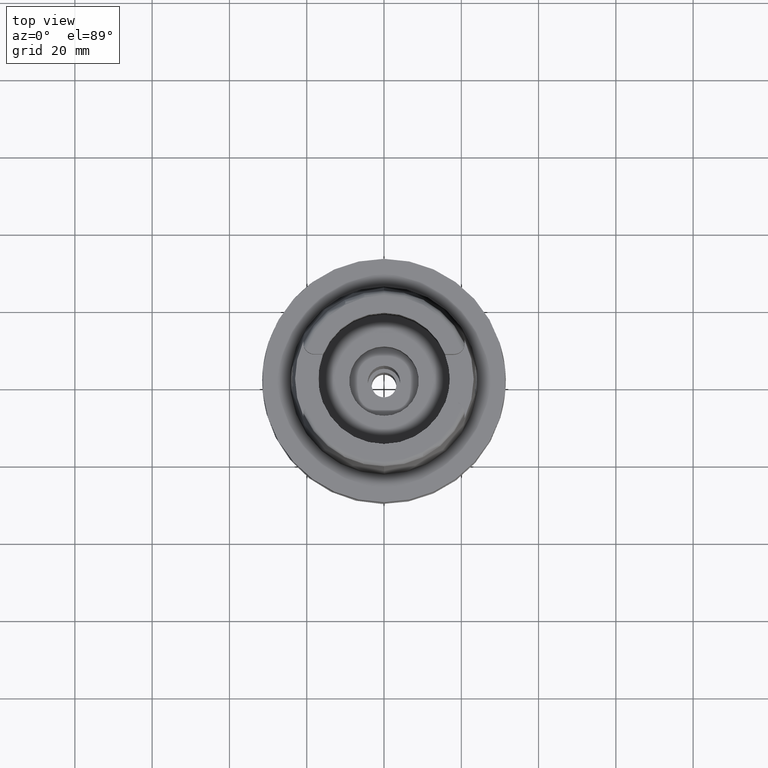
[diagram: clean part render]
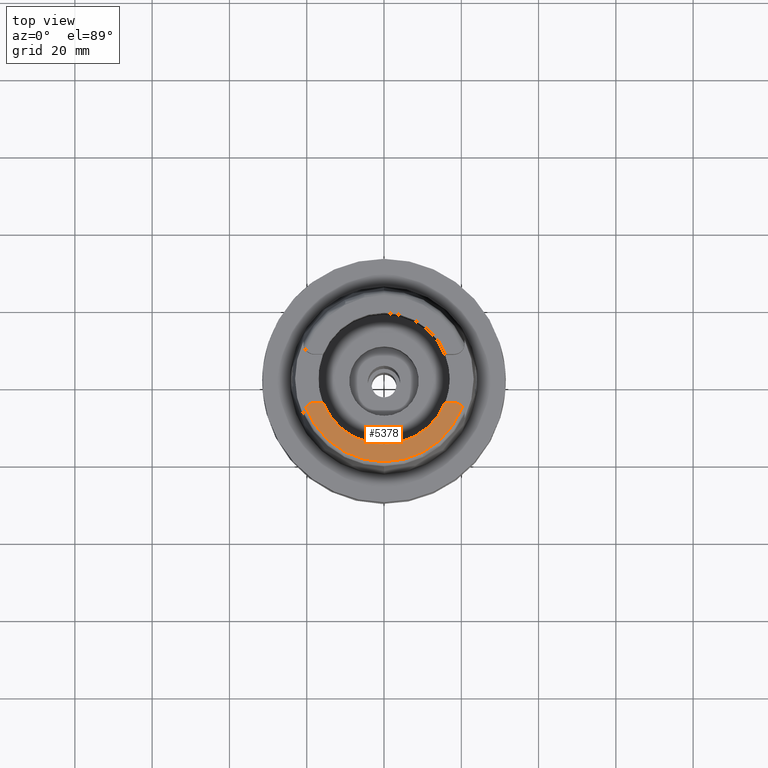
[diagram: same view with one face highlighted and labeled with its STEP entity id]
A machine part, top view. The second image highlights one B-rep face of the part: STEP entity #5378.
In plain terms, the highlighted planar face has unit normal (0, 0, 1).
Its self-contained STEP definition (entity closure, byte-faithful):
#73 = CARTESIAN_POINT ( 'NONE',  ( 20.28174256341000259, -7.352969181062000814, 32.00000000000000000 ) ) ;
#217 = VERTEX_POINT ( 'NONE', #536 ) ;
#224 = EDGE_CURVE ( 'NONE', #1503, #257, #843, .T. ) ;
#257 = VERTEX_POINT ( 'NONE', #3829 ) ;
#469 = CARTESIAN_POINT ( 'NONE',  ( -17.98999999999999844, -9.150000000000000355, 32.00000000000000000 ) ) ;
#536 = CARTESIAN_POINT ( 'NONE',  ( -17.98999999999999844, -6.270000000000000462, 32.00000000000000000 ) ) ;
#572 = CARTESIAN_POINT ( 'NONE',  ( 0.0000000000000000000, 0.0000000000000000000, 32.00000000000000000 ) ) ;
#673 = CARTESIAN_POINT ( 'NONE',  ( 15.80149043602999903, -6.270000000000000462, 32.00000000000000000 ) ) ;
#696 = FACE_OUTER_BOUND ( 'NONE', #3924, .T. ) ;
#740 = ORIENTED_EDGE ( 'NONE', *, *, #1173, .F. ) ;
#843 = CIRCLE ( 'NONE', #2156, 21.57348458609000375 ) ;
#847 = CIRCLE ( 'NONE', #3917, 17.00000000000000000 ) ;
#860 = ORIENTED_EDGE ( 'NONE', *, *, #1501, .T. ) ;
#928 = DIRECTION ( 'NONE',  ( 0.0000000000000000000, 0.0000000000000000000, 1.000000000000000000 ) ) ;
#941 = EDGE_CURVE ( 'NONE', #4662, #5358, #847, .T. ) ;
#964 = CARTESIAN_POINT ( 'NONE',  ( -15.80149043602999903, -6.270000000000000462, 32.00000000000000000 ) ) ;
#975 = LINE ( 'NONE', #3571, #3109 ) ;
#1173 = EDGE_CURVE ( 'NONE', #2425, #4662, #5243, .T. ) ;
#1473 = VERTEX_POINT ( 'NONE', #3854 ) ;
#1501 = EDGE_CURVE ( 'NONE', #1473, #5358, #2516, .T. ) ;
#1503 = VERTEX_POINT ( 'NONE', #73 ) ;
#1523 = AXIS2_PLACEMENT_3D ( 'NONE', #2354, #2820, #1553 ) ;
#1553 = DIRECTION ( 'NONE',  ( 0.0000000000000000000, 1.000000000000000000, 0.0000000000000000000 ) ) ;
#1877 = CIRCLE ( 'NONE', #1523, 2.800000000000000266 ) ;
#1914 = DIRECTION ( 'NONE',  ( 0.0000000000000000000, 0.0000000000000000000, 1.000000000000000000 ) ) ;
#1933 = DIRECTION ( 'NONE',  ( 0.0000000000000000000, 0.0000000000000000000, 1.000000000000000000 ) ) ;
#2103 = DIRECTION ( 'NONE',  ( -1.000000000000000000, -8.496094534321999950E-14, 0.0000000000000000000 ) ) ;
#2108 = CARTESIAN_POINT ( 'NONE',  ( 0.0000000000000000000, 0.0000000000000000000, 32.00000000000000000 ) ) ;
#2137 = CIRCLE ( 'NONE', #4249, 2.880000000000003446 ) ;
#2156 = AXIS2_PLACEMENT_3D ( 'NONE', #572, #3900, #3469 ) ;
#2245 = ORIENTED_EDGE ( 'NONE', *, *, #224, .F. ) ;
#2354 = CARTESIAN_POINT ( 'NONE',  ( 18.07000000000000028, -9.070000000000000284, 32.00000000000000000 ) ) ;
#2425 = VERTEX_POINT ( 'NONE', #964 ) ;
#2516 = LINE ( 'NONE', #4196, #4279 ) ;
#2820 = DIRECTION ( 'NONE',  ( 0.0000000000000000000, 0.0000000000000000000, -1.000000000000000000 ) ) ;
#2982 = DIRECTION ( 'NONE',  ( -0.7912216523763718756, 0.6115294733786784676, 0.0000000000000000000 ) ) ;
#3109 = VECTOR ( 'NONE', #4443, 1000.000000000000000 ) ;
#3124 = CARTESIAN_POINT ( 'NONE',  ( 0.0000000000000000000, -17.00000000000000000, 32.00000000000000000 ) ) ;
#3244 = EDGE_CURVE ( 'NONE', #2425, #217, #975, .T. ) ;
#3469 = DIRECTION ( 'NONE',  ( 0.9401236264118068009, -0.3408336354621024911, 0.0000000000000000000 ) ) ;
#3571 = CARTESIAN_POINT ( 'NONE',  ( -15.80149043602999903, -6.270000000000000462, 32.00000000000000000 ) ) ;
#3601 = DIRECTION ( 'NONE',  ( -0.9294994374136111848, -0.3688235294118045182, 0.0000000000000000000 ) ) ;
#3621 = DIRECTION ( 'NONE',  ( 1.000000000000000000, 0.0000000000000000000, 0.0000000000000000000 ) ) ;
#3641 = ORIENTED_EDGE ( 'NONE', *, *, #3956, .F. ) ;
#3666 = AXIS2_PLACEMENT_3D ( 'NONE', #4008, #1914, #3601 ) ;
#3670 = ORIENTED_EDGE ( 'NONE', *, *, #3244, .T. ) ;
#3829 = CARTESIAN_POINT ( 'NONE',  ( -20.26871835884000106, -7.388795116668999796, 32.00000000000000000 ) ) ;
#3854 = CARTESIAN_POINT ( 'NONE',  ( 18.07000000000000028, -6.270000000000000462, 32.00000000000000000 ) ) ;
#3864 = DIRECTION ( 'NONE',  ( 0.0000000000000000000, -1.000000000000000000, 0.0000000000000000000 ) ) ;
#3900 = DIRECTION ( 'NONE',  ( 0.0000000000000000000, 0.0000000000000000000, -1.000000000000000000 ) ) ;
#3917 = AXIS2_PLACEMENT_3D ( 'NONE', #2108, #928, #3864 ) ;
#3924 = EDGE_LOOP ( 'NONE', ( #2245, #3641, #860, #4524, #740, #3670, #5038 ) ) ;
#3956 = EDGE_CURVE ( 'NONE', #1473, #1503, #1877, .T. ) ;
#4008 = CARTESIAN_POINT ( 'NONE',  ( 0.0000000000000000000, 0.0000000000000000000, 32.00000000000000000 ) ) ;
#4028 = PLANE ( 'NONE',  #4960 ) ;
#4196 = CARTESIAN_POINT ( 'NONE',  ( 18.07000000000000028, -6.270000000000000462, 32.00000000000000000 ) ) ;
#4249 = AXIS2_PLACEMENT_3D ( 'NONE', #469, #4277, #2982 ) ;
#4277 = DIRECTION ( 'NONE',  ( 0.0000000000000000000, 0.0000000000000000000, -1.000000000000000000 ) ) ;
#4279 = VECTOR ( 'NONE', #2103, 1000.000000000000000 ) ;
#4443 = DIRECTION ( 'NONE',  ( -1.000000000000000000, 8.644330667353000255E-14, 0.0000000000000000000 ) ) ;
#4470 = EDGE_CURVE ( 'NONE', #257, #217, #2137, .T. ) ;
#4524 = ORIENTED_EDGE ( 'NONE', *, *, #941, .F. ) ;
#4662 = VERTEX_POINT ( 'NONE', #3124 ) ;
#4825 = CARTESIAN_POINT ( 'NONE',  ( 0.0000000000000000000, 0.0000000000000000000, 32.00000000000000000 ) ) ;
#4960 = AXIS2_PLACEMENT_3D ( 'NONE', #4825, #1933, #3621 ) ;
#5038 = ORIENTED_EDGE ( 'NONE', *, *, #4470, .F. ) ;
#5243 = CIRCLE ( 'NONE', #3666, 17.00000000000000000 ) ;
#5358 = VERTEX_POINT ( 'NONE', #673 ) ;
#5378 = ADVANCED_FACE ( 'NONE', ( #696 ), #4028, .T. ) ;